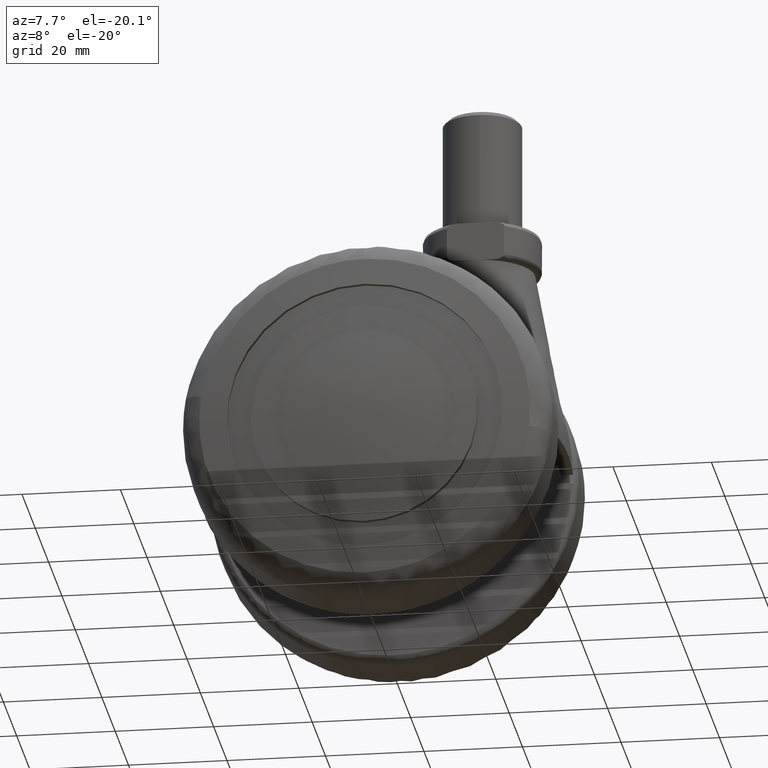
[diagram: clean part render]
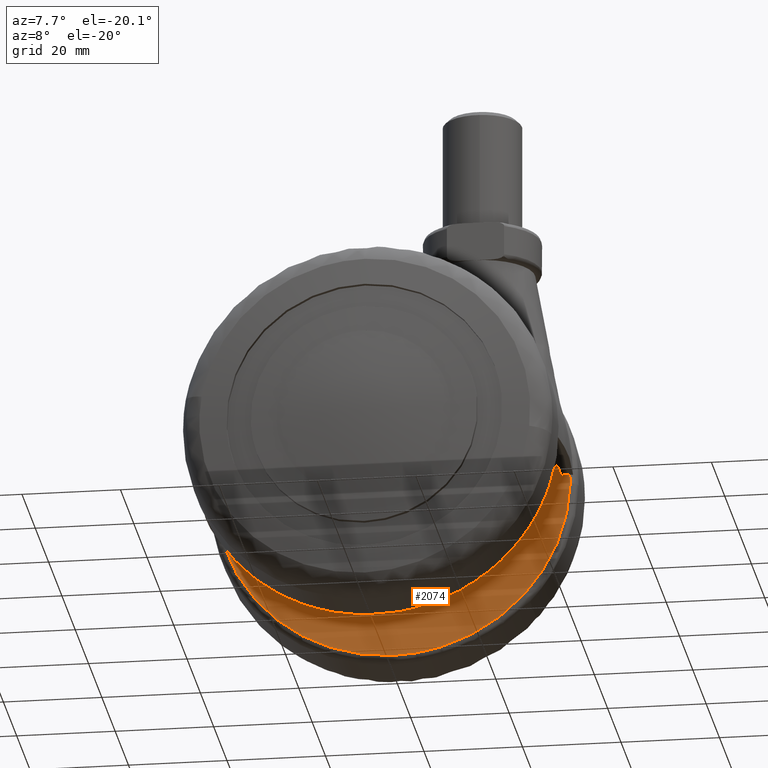
[diagram: same view with one face highlighted and labeled with its STEP entity id]
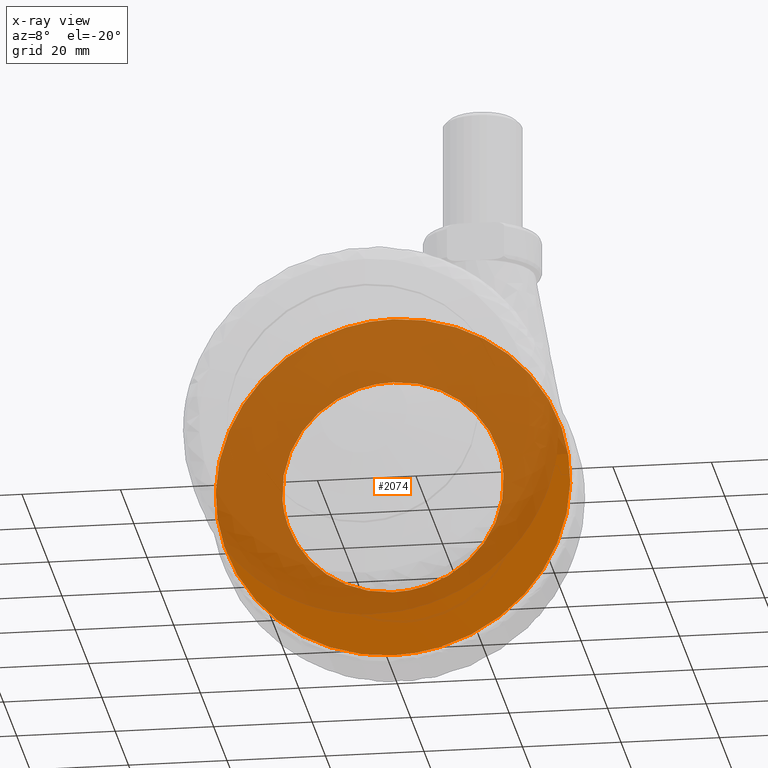
[diagram: x-ray of the same camera — body ghosted, the highlighted face saturated]
A machine part, auxiliary view. The second image highlights one B-rep face of the part: STEP entity #2074.
The next image is the same camera in x-ray: the body ghosted, the highlighted face saturated — about 74% of this face is hidden behind the body in this view.
In plain terms, the highlighted face is a freeform B-spline surface patch.
Its self-contained STEP definition (entity closure, byte-faithful):
#1285=CARTESIAN_POINT('',(22.430642877294360,13.500000000000000,1.765293207925290));
#1286=VERTEX_POINT('',#1285);
#1292=CARTESIAN_POINT('',(0.0,13.500000000000000,22.500000000000000));
#1293=VERTEX_POINT('',#1292);
#1294=CARTESIAN_POINT('',(0.0,13.500000000000000,22.500000000000000));
#1295=CARTESIAN_POINT('',(20.798819961297820,13.500000000000000,22.499999999999996));
#1296=CARTESIAN_POINT('',(22.430642877294364,13.500000000000007,1.765293207925289));
#1304=(BOUNDED_CURVE()B_SPLINE_CURVE(2,(#1294,#1295,#1296),.UNSPECIFIED.,.F.,.U.)B_SPLINE_CURVE_WITH_KNOTS((3,3),(0.0,0.236331579168274),.UNSPECIFIED.)CURVE()GEOMETRIC_REPRESENTATION_ITEM()RATIONAL_B_SPLINE_CURVE((1.0,0.723120332280552,0.969723937454896))REPRESENTATION_ITEM(''));
#1305=EDGE_CURVE('',#1293,#1286,#1304,.T.);
#1307=CARTESIAN_POINT('',(-22.430642877294360,13.500000000000000,-1.765293207925285));
#1308=VERTEX_POINT('',#1307);
#1309=CARTESIAN_POINT('',(-22.430642877294364,13.499999999999996,-1.765293207925285));
#1310=CARTESIAN_POINT('',(-22.500000000000000,13.500000000000002,-0.884009100132803));
#1311=CARTESIAN_POINT('',(-22.500000000000000,13.500000000000000,-1.653219E-015));
#1312=CARTESIAN_POINT('',(-22.500000000000000,13.500000000000000,22.500000000000000));
#1313=CARTESIAN_POINT('',(0.0,13.500000000000000,22.500000000000000));
#1321=(BOUNDED_CURVE()B_SPLINE_CURVE(2,(#1309,#1310,#1311,#1312,#1313),.UNSPECIFIED.,.F.,.U.)B_SPLINE_CURVE_WITH_KNOTS((3,2,3),(0.736331579168274,0.750000000000000,1.0),.UNSPECIFIED.)CURVE()GEOMETRIC_REPRESENTATION_ITEM()RATIONAL_B_SPLINE_CURVE((0.969723937454896,0.983986448905995,1.0,0.707106781186548,1.0))REPRESENTATION_ITEM(''));
#1322=EDGE_CURVE('',#1308,#1293,#1321,.T.);
#1402=CARTESIAN_POINT('',(0.0,13.500000000000000,-22.500000000000000));
#1403=VERTEX_POINT('',#1402);
#1404=CARTESIAN_POINT('',(0.0,13.500000000000000,-22.500000000000000));
#1405=CARTESIAN_POINT('',(-20.798819961297820,13.500000000000000,-22.499999999999996));
#1406=CARTESIAN_POINT('',(-22.430642877294364,13.499999999999996,-1.765293207925285));
#1414=(BOUNDED_CURVE()B_SPLINE_CURVE(2,(#1404,#1405,#1406),.UNSPECIFIED.,.F.,.U.)B_SPLINE_CURVE_WITH_KNOTS((3,3),(0.500000000000000,0.736331579168274),.UNSPECIFIED.)CURVE()GEOMETRIC_REPRESENTATION_ITEM()RATIONAL_B_SPLINE_CURVE((1.0,0.723120332280552,0.969723937454896))REPRESENTATION_ITEM(''));
#1415=EDGE_CURVE('',#1403,#1308,#1414,.T.);
#1417=CARTESIAN_POINT('',(22.430642877294364,13.500000000000007,1.765293207925289));
#1418=CARTESIAN_POINT('',(22.500000000000000,13.500000000000002,0.884009100132801));
#1419=CARTESIAN_POINT('',(22.500000000000000,13.500000000000000,-1.653219E-015));
#1420=CARTESIAN_POINT('',(22.500000000000000,13.500000000000000,-22.500000000000000));
#1421=CARTESIAN_POINT('',(0.0,13.500000000000000,-22.500000000000000));
#1429=(BOUNDED_CURVE()B_SPLINE_CURVE(2,(#1417,#1418,#1419,#1420,#1421),.UNSPECIFIED.,.F.,.U.)B_SPLINE_CURVE_WITH_KNOTS((3,2,3),(0.236331579168274,0.250000000000000,0.500000000000000),.UNSPECIFIED.)CURVE()GEOMETRIC_REPRESENTATION_ITEM()RATIONAL_B_SPLINE_CURVE((0.969723937454896,0.983986448905995,1.0,0.707106781186548,1.0))REPRESENTATION_ITEM(''));
#1430=EDGE_CURVE('',#1286,#1403,#1429,.T.);
#1768=CARTESIAN_POINT('',(35.988630830953433,13.500000000000000,-0.904683436759317));
#1769=VERTEX_POINT('',#1768);
#1783=CARTESIAN_POINT('',(0.0,13.500000000000000,-36.0));
#1784=VERTEX_POINT('',#1783);
#1785=CARTESIAN_POINT('',(35.988630830953419,13.500000000000000,-0.904683436759317));
#1786=CARTESIAN_POINT('',(35.106403541766163,13.500000000000000,-35.999999999999993));
#1787=CARTESIAN_POINT('',(0.0,13.500000000000000,-36.0));
#1795=(BOUNDED_CURVE()B_SPLINE_CURVE(2,(#1785,#1786,#1787),.UNSPECIFIED.,.F.,.U.)B_SPLINE_CURVE_WITH_KNOTS((3,3),(0.254420108233866,0.500000000000000),.UNSPECIFIED.)CURVE()GEOMETRIC_REPRESENTATION_ITEM()RATIONAL_B_SPLINE_CURVE((0.989826157673273,0.712285260099031,1.0))REPRESENTATION_ITEM(''));
#1796=EDGE_CURVE('',#1769,#1784,#1795,.T.);
#1798=CARTESIAN_POINT('',(-35.988630830953433,13.500000000000000,0.904683436759318));
#1799=VERTEX_POINT('',#1798);
#1800=CARTESIAN_POINT('',(0.0,13.500000000000000,-36.0));
#1801=CARTESIAN_POINT('',(-36.0,13.500000000000000,-36.0));
#1802=CARTESIAN_POINT('',(-36.0,13.500000000000000,-1.653219E-015));
#1803=CARTESIAN_POINT('',(-36.0,13.499999999999996,0.452413156819615));
#1804=CARTESIAN_POINT('',(-35.988630830953426,13.500000000000005,0.904683436759318));
#1812=(BOUNDED_CURVE()B_SPLINE_CURVE(2,(#1800,#1801,#1802,#1803,#1804),.UNSPECIFIED.,.F.,.U.)B_SPLINE_CURVE_WITH_KNOTS((3,2,3),(0.500000000000000,0.750000000000000,0.754420108233866),.UNSPECIFIED.)CURVE()GEOMETRIC_REPRESENTATION_ITEM()RATIONAL_B_SPLINE_CURVE((1.0,0.707106781186547,1.0,0.994821521087517,0.989826157673273))REPRESENTATION_ITEM(''));
#1813=EDGE_CURVE('',#1784,#1799,#1812,.T.);
#1856=CARTESIAN_POINT('',(0.0,13.500000000000000,36.0));
#1857=VERTEX_POINT('',#1856);
#1858=CARTESIAN_POINT('',(-35.988630830953419,13.500000000000000,0.904683436759318));
#1859=CARTESIAN_POINT('',(-35.106403541766163,13.500000000000000,35.999999999999993));
#1860=CARTESIAN_POINT('',(0.0,13.500000000000000,36.0));
#1868=(BOUNDED_CURVE()B_SPLINE_CURVE(2,(#1858,#1859,#1860),.UNSPECIFIED.,.F.,.U.)B_SPLINE_CURVE_WITH_KNOTS((3,3),(0.754420108233866,1.0),.UNSPECIFIED.)CURVE()GEOMETRIC_REPRESENTATION_ITEM()RATIONAL_B_SPLINE_CURVE((0.989826157673273,0.712285260099031,1.0))REPRESENTATION_ITEM(''));
#1869=EDGE_CURVE('',#1799,#1857,#1868,.T.);
#1871=CARTESIAN_POINT('',(0.0,13.500000000000000,36.0));
#1872=CARTESIAN_POINT('',(36.0,13.500000000000000,36.0));
#1873=CARTESIAN_POINT('',(36.0,13.500000000000000,-1.653219E-015));
#1874=CARTESIAN_POINT('',(36.000000000000007,13.500000000000004,-0.452413156819607));
#1875=CARTESIAN_POINT('',(35.988630830953426,13.500000000000002,-0.904683436759317));
#1883=(BOUNDED_CURVE()B_SPLINE_CURVE(2,(#1871,#1872,#1873,#1874,#1875),.UNSPECIFIED.,.F.,.U.)B_SPLINE_CURVE_WITH_KNOTS((3,2,3),(0.0,0.250000000000000,0.254420108233866),.UNSPECIFIED.)CURVE()GEOMETRIC_REPRESENTATION_ITEM()RATIONAL_B_SPLINE_CURVE((1.0,0.707106781186547,1.0,0.994821521087517,0.989826157673273))REPRESENTATION_ITEM(''));
#1884=EDGE_CURVE('',#1857,#1769,#1883,.T.);
#2057=CARTESIAN_POINT('',(39.583896262801836,13.500000000000000,39.596399860450028));
#2058=CARTESIAN_POINT('',(39.583896262801836,13.500000000000000,-39.596401791640517));
#2059=CARTESIAN_POINT('',(-39.583896906328697,13.500000000000000,39.596399860450028));
#2060=CARTESIAN_POINT('',(-39.583896906328697,13.500000000000000,-39.596401791640517));
#2061=B_SPLINE_SURFACE_WITH_KNOTS('',1,1,((#2057,#2059),(#2058,#2060)),.UNSPECIFIED.,.F.,.F.,.U.,(2,2),(2,2),(0.0,79.192801652090537),(0.0,79.167793169130533),.UNSPECIFIED.);
#2062=ORIENTED_EDGE('',*,*,#1869,.F.);
#2063=ORIENTED_EDGE('',*,*,#1813,.F.);
#2064=ORIENTED_EDGE('',*,*,#1796,.F.);
#2065=ORIENTED_EDGE('',*,*,#1884,.F.);
#2066=EDGE_LOOP('',(#2062,#2063,#2064,#2065));
#2067=FACE_OUTER_BOUND('',#2066,.T.);
#2068=ORIENTED_EDGE('',*,*,#1415,.T.);
#2069=ORIENTED_EDGE('',*,*,#1322,.T.);
#2070=ORIENTED_EDGE('',*,*,#1305,.T.);
#2071=ORIENTED_EDGE('',*,*,#1430,.T.);
#2072=EDGE_LOOP('',(#2068,#2069,#2070,#2071));
#2073=FACE_BOUND('',#2072,.T.);
#2074=ADVANCED_FACE('',(#2067,#2073),#2061,.F.);